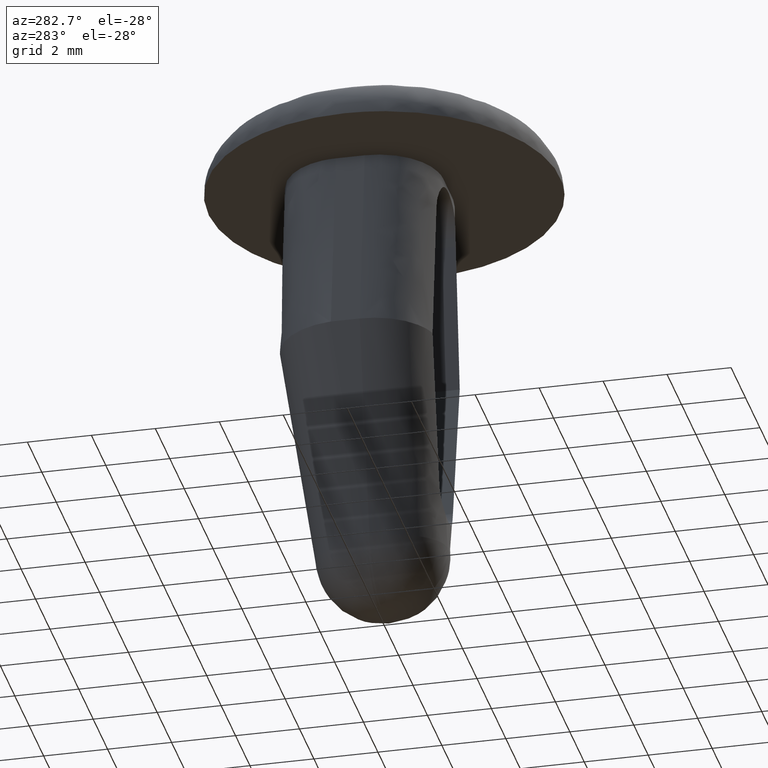
[diagram: clean part render]
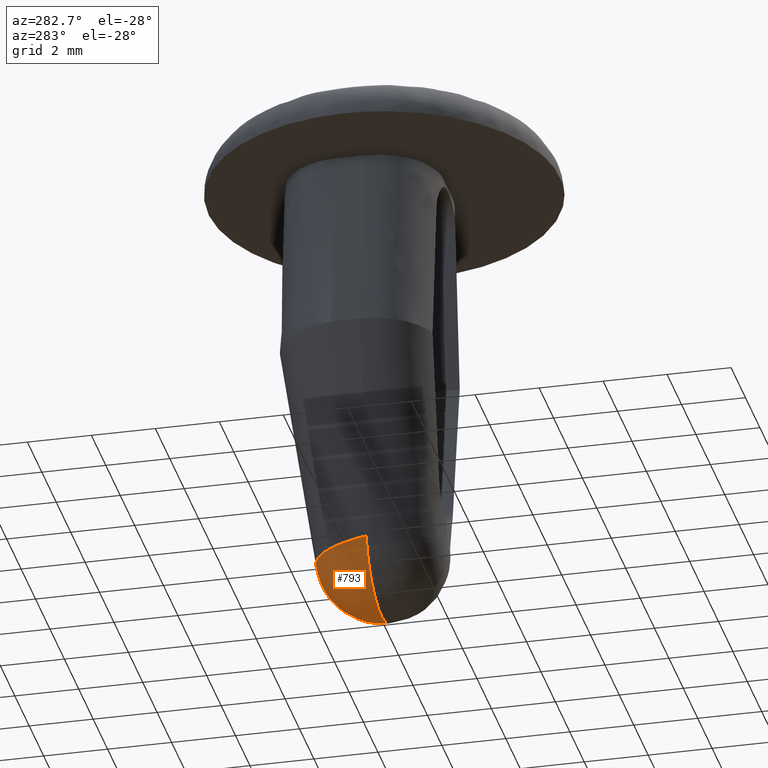
[diagram: same view with one face highlighted and labeled with its STEP entity id]
A machine part, auxiliary view. The second image highlights one B-rep face of the part: STEP entity #793.
In plain terms, the highlighted face is a freeform B-spline surface patch.
Its self-contained STEP definition (entity closure, byte-faithful):
#650=CARTESIAN_POINT('',(-2.060466227264435,0.098385953294144,-12.805561015660540));
#651=VERTEX_POINT('',#650);
#658=CARTESIAN_POINT('',(-0.098117512680607,2.083535484864220,-12.662585528279360));
#659=VERTEX_POINT('',#658);
#665=CARTESIAN_POINT('',(-0.098117512680606,2.083535484864220,-12.662585528279360));
#666=CARTESIAN_POINT('',(-2.015426981467741,2.037972877929052,-13.034384965946378));
#667=CARTESIAN_POINT('',(-2.060466227264435,0.098385953294144,-12.805561015660540));
#675=(BOUNDED_CURVE()B_SPLINE_CURVE(2,(#665,#666,#667),.UNSPECIFIED.,.F.,.U.)CURVE()GEOMETRIC_REPRESENTATION_ITEM()QUASI_UNIFORM_CURVE()RATIONAL_B_SPLINE_CURVE((1.0,0.715363844037135,1.0))REPRESENTATION_ITEM(''));
#676=EDGE_CURVE('',#659,#651,#675,.T.);
#681=CARTESIAN_POINT('',(-0.098423099146240,2.083734403312085,-12.660962316351270));
#682=CARTESIAN_POINT('',(-0.096369554466865,2.082334164504303,-12.672388528246341));
#683=CARTESIAN_POINT('',(-0.092307629594523,2.080978782767208,-12.683448698012141));
#684=CARTESIAN_POINT('',(-0.080650141567571,2.078518450160606,-12.703525474587069));
#685=CARTESIAN_POINT('',(-0.073057099458572,2.077414145102124,-12.712536811456820));
#686=CARTESIAN_POINT('',(-0.055248233516886,2.075588995725579,-12.727430373469700));
#687=CARTESIAN_POINT('',(-0.045035882318524,2.074868507400680,-12.733309693641701));
#688=CARTESIAN_POINT('',(-0.023213637793471,2.073897654848686,-12.741232032971469));
#689=CARTESIAN_POINT('',(-0.011607995691112,2.073647479807710,-12.743273508334930));
#690=CARTESIAN_POINT('',(0.011607813258884,2.073647477212605,-12.743273529511480));
#691=CARTESIAN_POINT('',(0.023213459085535,2.073897649658978,-12.741232075320459));
#692=CARTESIAN_POINT('',(0.045035718063446,2.074868497332307,-12.733309775801519));
#693=CARTESIAN_POINT('',(0.055248079987572,2.075588983374094,-12.727430474260141));
#694=CARTESIAN_POINT('',(0.073056973099878,2.077414128769218,-12.712536944736399));
#695=CARTESIAN_POINT('',(0.080650031648454,2.078518432130170,-12.703525621718819));
#696=CARTESIAN_POINT('',(0.092307556301892,2.080978762130576,-12.683448866410940));
#697=CARTESIAN_POINT('',(0.096369501351505,2.082334142959545,-12.672388704055610));
#698=CARTESIAN_POINT('',(0.098423066876008,2.083734381308251,-12.660962495906690));
#699=CARTESIAN_POINT('',(-2.025423752328837,2.041921587957682,-13.002162749815533));
#700=CARTESIAN_POINT('',(-1.956919115277818,2.014070986615250,-13.229428892258467));
#701=CARTESIAN_POINT('',(-1.850948759226244,1.988238584290102,-13.440226151329966));
#702=CARTESIAN_POINT('',(-1.582048078454296,1.942719780140299,-13.811668150034034));
#703=CARTESIAN_POINT('',(-1.419222510620702,1.923036799184765,-13.972284974731762));
#704=CARTESIAN_POINT('',(-1.056187560251318,1.891124968468874,-14.232691512311618));
#705=CARTESIAN_POINT('',(-0.855985735057546,1.878887744246614,-14.332549562377014));
#706=CARTESIAN_POINT('',(-0.437201152584648,1.862511143621355,-14.466185702030396));
#707=CARTESIAN_POINT('',(-0.218592364004540,1.858367229093140,-14.500000823573542));
#708=CARTESIAN_POINT('',(0.218588928606353,1.858367185852552,-14.500001176424872));
#709=CARTESIAN_POINT('',(0.437197765100967,1.862511057128095,-14.466186407831763));
#710=CARTESIAN_POINT('',(0.855982540863835,1.878887573365019,-14.332550956802898));
#711=CARTESIAN_POINT('',(1.056184511543760,1.891124756428805,-14.232693242598460));
#712=CARTESIAN_POINT('',(1.419219853805225,1.923036509696810,-13.972287337007897));
#713=CARTESIAN_POINT('',(1.582045668290667,1.942719454347072,-13.811670808568016));
#714=CARTESIAN_POINT('',(1.850946943275209,1.988238194705529,-13.440229330413329));
#715=CARTESIAN_POINT('',(1.956917647138156,2.014070569578473,-13.229432295357057));
#716=CARTESIAN_POINT('',(2.025422676247229,2.041921150460220,-13.002166319877075));
#717=CARTESIAN_POINT('',(-2.066885082071030,0.098584917369857,-12.771465745988310));
#718=CARTESIAN_POINT('',(-2.023760775041102,0.097184680917364,-13.011415802722871));
#719=CARTESIAN_POINT('',(-1.938460221484950,0.095829296824981,-13.243679760866771));
#720=CARTESIAN_POINT('',(-1.693652972919014,0.093368964218379,-13.665292068940140));
#721=CARTESIAN_POINT('',(-1.534199088629989,0.092264659159896,-13.854530143204830));
#722=CARTESIAN_POINT('',(-1.160212903854620,0.090439509783351,-14.167294945475531));
#723=CARTESIAN_POINT('',(-0.945753528689032,0.089719021458452,-14.290760669087639));
#724=CARTESIAN_POINT('',(-0.487486393662866,0.088748168906459,-14.457129795012531));
#725=CARTESIAN_POINT('',(-0.243767909513357,0.088497993865483,-14.500000777645161));
#726=CARTESIAN_POINT('',(0.243764078436559,0.088497991270376,-14.500001222352889));
#727=CARTESIAN_POINT('',(0.487482640796238,0.088748163716751,-14.457130684341360));
#728=CARTESIAN_POINT('',(0.945750079332367,0.089719011390079,-14.290762394443760));
#729=CARTESIAN_POINT('',(1.160209679739028,0.090439497431866,-14.167297062074780));
#730=CARTESIAN_POINT('',(1.534196435097428,0.092264642826990,-13.854532942076069));
#731=CARTESIAN_POINT('',(1.693650664617511,0.093368946187943,-13.665295158706879));
#732=CARTESIAN_POINT('',(1.938458682339749,0.095829276188348,-13.243683297241571));
#733=CARTESIAN_POINT('',(2.023759659620084,0.097184659372626,-13.011419494713730));
#734=CARTESIAN_POINT('',(2.066884404396174,0.098584895366023,-12.771469516652219));
#742=(BOUNDED_SURFACE()B_SPLINE_SURFACE(3,2,((#681,#699,#717),(#682,#700,#718),(#683,#701,#719),(#684,#702,#720),(#685,#703,#721),(#686,#704,#722),(#687,#705,#723),(#688,#706,#724),(#689,#707,#725),(#690,#708,#726),(#691,#709,#727),(#692,#710,#728),(#693,#711,#729),(#694,#712,#730),(#695,#713,#731),(#696,#714,#732),(#697,#715,#733),(#698,#716,#734)),.UNSPECIFIED.,.F.,.F.,.U.)B_SPLINE_SURFACE_WITH_KNOTS((4,2,2,2,2,2,2,2,4),(3,3),(0.0,0.731395423975763,1.462790847951528,2.194186271927293,2.925581695903058,3.656977119878823,4.388372543854588,5.119767967830353,5.851163391806118),(0.0,3.263401115141105),.UNSPECIFIED.)GEOMETRIC_REPRESENTATION_ITEM()RATIONAL_B_SPLINE_SURFACE(((1.0,0.714673348997707,1.0),(1.0,0.719536245816735,1.0),(1.0,0.724190131730482,1.0),(1.0,0.732571966279259,1.0),(1.0,0.736297500925476,1.0),(1.0,0.742423070436382,1.0),(1.0,0.744822740996623,1.0),(1.0,0.748050229956501,1.0),(1.0,0.748877909469361,1.0),(1.0,0.748877918068374,1.0),(1.0,0.748050247154201,1.0),(1.0,0.744822774522547,1.0),(1.0,0.742423111690962,1.0),(1.0,0.736297555941286,1.0),(1.0,0.732572027326095,1.0),(1.0,0.724190202413988,1.0),(1.0,0.719536320106882,1.0),(1.0,0.714673425397817,1.0)))REPRESENTATION_ITEM('')SURFACE());
#743=CARTESIAN_POINT('',(0.098117459995981,2.083535463059265,-12.662585706211900));
#744=VERTEX_POINT('',#743);
#745=CARTESIAN_POINT('',(2.060467000000000,0.098386383097671,-12.805556999999901));
#746=VERTEX_POINT('',#745);
#747=CARTESIAN_POINT('',(0.098117459995980,2.083535463059263,-12.662585706211910));
#748=CARTESIAN_POINT('',(2.015427784048682,2.037973350277618,-13.034381111493285));
#749=CARTESIAN_POINT('',(2.060467000000000,0.098386383097671,-12.805556999999901));
#757=(BOUNDED_CURVE()B_SPLINE_CURVE(2,(#747,#748,#749),.UNSPECIFIED.,.F.,.U.)CURVE()GEOMETRIC_REPRESENTATION_ITEM()QUASI_UNIFORM_CURVE()RATIONAL_B_SPLINE_CURVE((1.0,0.715363833231817,1.0))REPRESENTATION_ITEM(''));
#758=EDGE_CURVE('',#744,#746,#757,.T.);
#759=ORIENTED_EDGE('',*,*,#758,.T.);
#760=CARTESIAN_POINT('',(-2.060466227264435,0.098385953294144,-12.805561015660540));
#761=CARTESIAN_POINT('',(-1.726950549897214,0.088497982741623,-14.500002683828827));
#762=CARTESIAN_POINT('',(0.000002047562193,0.088497992567668,-14.500000999998900));
#763=CARTESIAN_POINT('',(1.726954645021601,0.088498002393714,-14.499999316168973));
#764=CARTESIAN_POINT('',(2.060467000000000,0.098386383097671,-12.805556999999901));
#772=(BOUNDED_CURVE()B_SPLINE_CURVE(2,(#760,#761,#762,#763,#764),.UNSPECIFIED.,.F.,.U.)B_SPLINE_CURVE_WITH_KNOTS((3,2,3),(0.0,0.500000000000000,1.0),.UNSPECIFIED.)CURVE()GEOMETRIC_REPRESENTATION_ITEM()RATIONAL_B_SPLINE_CURVE((1.0,0.772373892718764,1.0,0.772373892718764,1.0))REPRESENTATION_ITEM(''));
#773=EDGE_CURVE('',#651,#746,#772,.T.);
#774=ORIENTED_EDGE('',*,*,#773,.F.);
#775=ORIENTED_EDGE('',*,*,#676,.F.);
#776=CARTESIAN_POINT('',(0.098117459995981,2.083535463059265,-12.662585706211900));
#777=CARTESIAN_POINT('',(0.082235823587474,2.073647464763890,-12.743273631095338));
#778=CARTESIAN_POINT('',(-0.000000136402846,2.073647478510165,-12.743273518923150));
#779=CARTESIAN_POINT('',(-0.082236096393166,2.073647492256440,-12.743273406750957));
#780=CARTESIAN_POINT('',(-0.098117512680607,2.083535484864236,-12.662585528279360));
#788=(BOUNDED_CURVE()B_SPLINE_CURVE(2,(#776,#777,#778,#779,#780),.UNSPECIFIED.,.F.,.U.)B_SPLINE_CURVE_WITH_KNOTS((3,2,3),(0.0,0.500000000000000,1.0),.UNSPECIFIED.)CURVE()GEOMETRIC_REPRESENTATION_ITEM()RATIONAL_B_SPLINE_CURVE((1.0,0.772373430379317,1.0,0.772373430379317,1.0))REPRESENTATION_ITEM(''));
#789=EDGE_CURVE('',#744,#659,#788,.T.);
#790=ORIENTED_EDGE('',*,*,#789,.F.);
#791=EDGE_LOOP('',(#759,#774,#775,#790));
#792=FACE_OUTER_BOUND('',#791,.T.);
#793=ADVANCED_FACE('',(#792),#742,.T.);